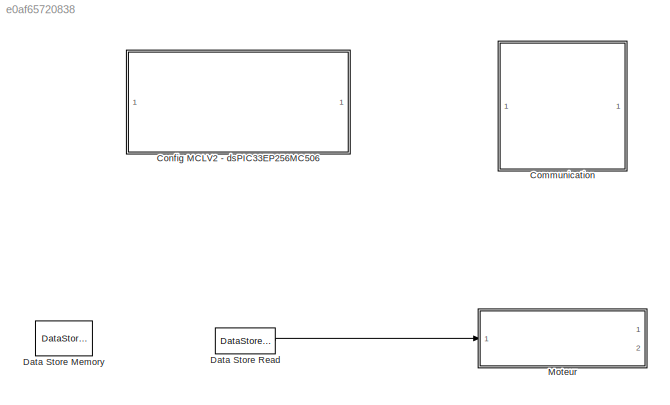
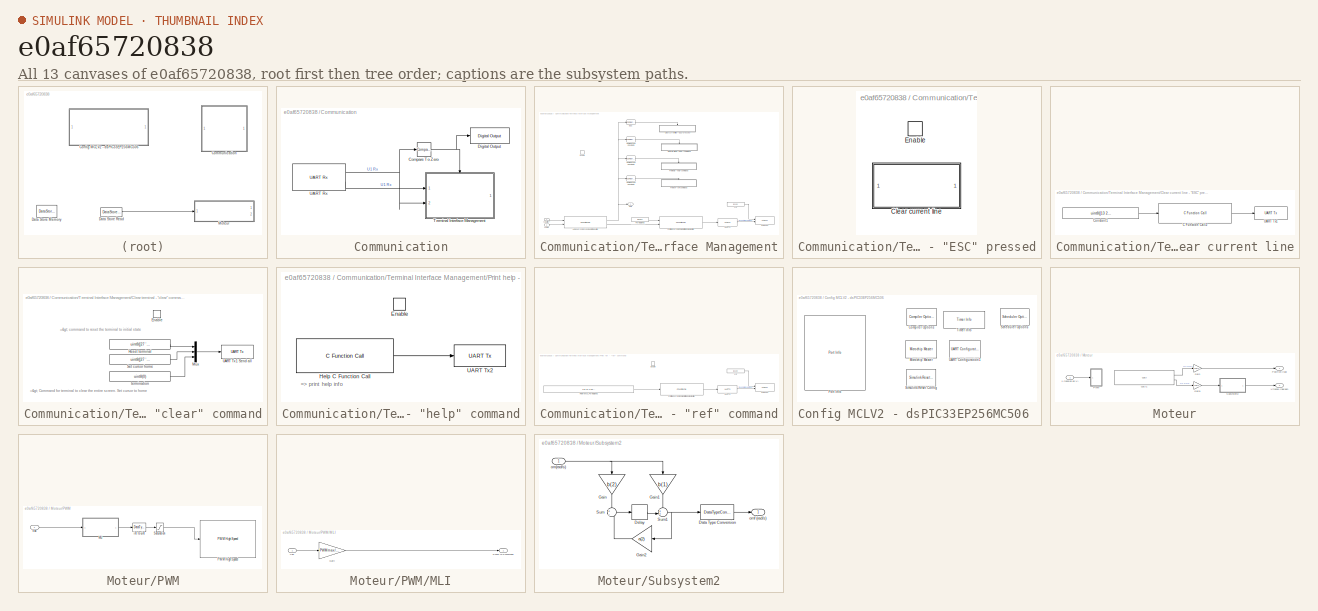
[diagram: thumbnail index - all 13 canvases of the model, root first then tree order]
MODEL slx_e0af65720838
KIND model
CONFIG AbsTol = auto
CONFIG EnableMultiTasking = on
CONFIG FixedStep = Ts
CONFIG MaxStep = auto
CONFIG MinStep = auto
CONFIG RelTol = 1e-3
CONFIG SampleTimeConstraint = Unconstrained
CONFIG Solver = FixedStepDiscrete
CONFIG SolverName = FixedStepDiscrete
CONFIG StartTime = 0.0
CONFIG StopTime = inf
BLOCK [SubSystem] Communication
  Ports = []
  RequestExecContextInheritance = off
  Variant = off
BLOCK [Reference] Communication/Compare To Zero  REF=simulink/Logic and Bit
Operations/Compare
To Zero
  Ports = [1, 1]
  SourceBlock = simulink/Logic and Bit\nOperations/Compare\nTo Zero
  SourceProductBaseCode = SL
  SourceProductName = Simulink
  SourceType = Compare To Zero
BLOCK [Reference] Communication/Digital Output  REF=MCHP_Blockset/Digital IO/Digital Output
  Ports = [1]
  SourceBlock = MCHP_Blockset/Digital IO/Digital Output
  SourceProductName = MPLAB® Device Blocks for Simulink®
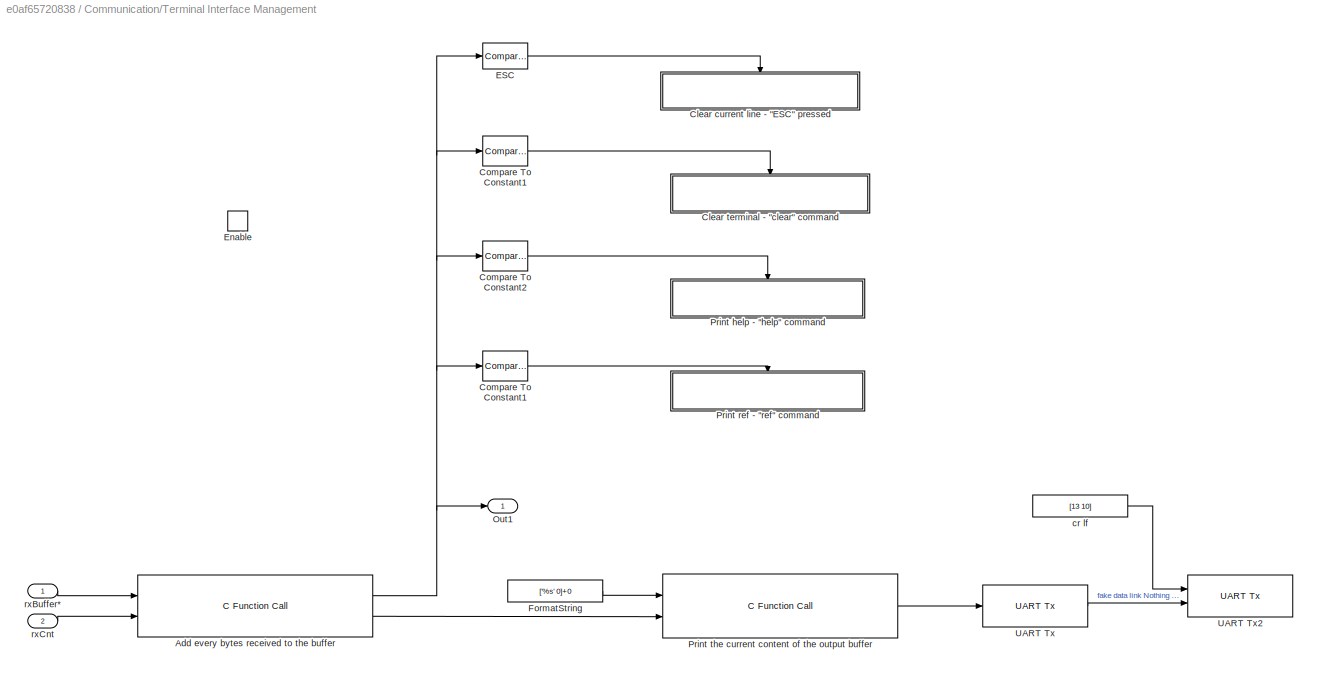
BLOCK [SubSystem] Communication/Terminal Interface Management
  Ports = [2, 1, 1]
  RequestExecContextInheritance = off
  Variant = off
BLOCK [Reference] Communication/Terminal Interface Management/Add every bytes received to the buffer  REF=MCHP_Blockset/User Functions/C Function Call
  Ports = [2, 2]
  Priority = 0
  SourceBlock = MCHP_Blockset/User Functions/C Function Call
  SourceProductName = MPLAB® Device Blocks for Simulink®
  SourceType = C Function Call
  UserDataPersistent = on
BLOCK [SubSystem] Communication/Terminal Interface Management/Clear current line - "ESC" pressed
  Ports = [0, 0, 1]
  Priority = 1
  RequestExecContextInheritance = off
  TreatAsAtomicUnit = on
  Variant = off
BLOCK [SubSystem] Communication/Terminal Interface Management/Clear current line - "ESC" pressed/Clear current line
  Ports = []
  Priority = 0
  RequestExecContextInheritance = off
  TreatAsAtomicUnit = on
  Variant = off
BLOCK [Reference] Communication/Terminal Interface Management/Clear current line - "ESC" pressed/Clear current line/C Function Call2  REF=MCHP_Blockset/User Functions/C Function Call
  Ports = [1, 1]
  SourceBlock = MCHP_Blockset/User Functions/C Function Call
  SourceProductName = MPLAB® Device Blocks for Simulink®
  SourceType = C Function Call
  UserDataPersistent = on
BLOCK [Constant] Communication/Terminal Interface Management/Clear current line - "ESC" pressed/Clear current line/Constant1
  LockScale = on
  OutDataTypeStr = uint8
  Value = uint8([13 27 '[2K' 0])
BLOCK [Reference] Communication/Terminal Interface Management/Clear current line - "ESC" pressed/Clear current line/UART Tx1  REF=MCHP_Blockset/BUS UART/UART Tx
  Ports = [1]
  SourceBlock = MCHP_Blockset/BUS UART/UART Tx
  SourceProductName = MPLAB® Device Blocks for Simulink®
  SourceType = UART Tx Output Driver
BLOCK [EnablePort] Communication/Terminal Interface Management/Clear current line - "ESC" pressed/Enable
  Ports = []
BLOCK [SubSystem] Communication/Terminal Interface Management/Clear terminal - "clear" command
  Ports = [0, 0, 1]
  Priority = 100
  RequestExecContextInheritance = off
  Variant = off
BLOCK [EnablePort] Communication/Terminal Interface Management/Clear terminal - "clear" command/Enable
  Ports = []
BLOCK [Mux] Communication/Terminal Interface Management/Clear terminal - "clear" command/Mux
  DisplayOption = bar
  Inputs = 3
  Ports = [3, 1]
BLOCK [Constant] Communication/Terminal Interface Management/Clear terminal - "clear" command/Reset terminal
  LockScale = on
  Priority = 0
  Value = uint8([27 '[2J'])
BLOCK [Constant] Communication/Terminal Interface Management/Clear terminal - "clear" command/Set cursor home
  LockScale = on
  Priority = 0
  Value = uint8([27 '[H'])
BLOCK [Reference] Communication/Terminal Interface Management/Clear terminal - "clear" command/UART Tx1 Send all  REF=MCHP_Blockset/BUS UART/UART Tx
  Ports = [1]
  SourceBlock = MCHP_Blockset/BUS UART/UART Tx
  SourceProductName = MPLAB® Device Blocks for Simulink®
  SourceType = UART Tx Output Driver
BLOCK [Constant] Communication/Terminal Interface Management/Clear terminal - "clear" command/termination
  LockScale = on
  Priority = 0
  Value = uint8(0)
BLOCK [Reference] Communication/Terminal Interface Management/Compare To Constant1  REF=simulink/Logic and Bit
Operations/Compare
To Constant
  Ports = [1, 1]
  SourceBlock = simulink/Logic and Bit\nOperations/Compare\nTo Constant
  SourceProductBaseCode = SL
  SourceProductName = Simulink
  SourceType = Compare To Constant
BLOCK [Reference] Communication/Terminal Interface Management/Compare To Constant2  REF=simulink/Logic and Bit
Operations/Compare
To Constant
  Ports = [1, 1]
  SourceBlock = simulink/Logic and Bit\nOperations/Compare\nTo Constant
  SourceProductBaseCode = SL
  SourceProductName = Simulink
  SourceType = Compare To Constant
BLOCK [Reference] Communication/Terminal Interface Management/ESC  REF=simulink/Logic and Bit
Operations/Compare
To Constant
  Ports = [1, 1]
  SourceBlock = simulink/Logic and Bit\nOperations/Compare\nTo Constant
  SourceProductBaseCode = SL
  SourceProductName = Simulink
  SourceType = Compare To Constant
BLOCK [EnablePort] Communication/Terminal Interface Management/Enable
  Ports = []
BLOCK [Constant] Communication/Terminal Interface Management/FormatString 
  LockScale = on
  OutDataTypeStr = uint8
  Priority = 15
  Value = ['%s' 0]+0
BLOCK [Outport] Communication/Terminal Interface Management/Out1
  IconDisplay = Port number
BLOCK [SubSystem] Communication/Terminal Interface Management/Print help - "help" command
  Ports = [0, 0, 1]
  Priority = 99
  RequestExecContextInheritance = off
  Variant = off
BLOCK [EnablePort] Communication/Terminal Interface Management/Print help - "help" command/Enable
  Ports = []
BLOCK [Reference] Communication/Terminal Interface Management/Print help - "help" command/Help C Function Call  REF=MCHP_Blockset/User Functions/C Function Call
  Ports = [0, 1]
  Priority = 0
  SourceBlock = MCHP_Blockset/User Functions/C Function Call
  SourceProductName = MPLAB® Device Blocks for Simulink®
  SourceType = C Function Call
  UserDataPersistent = on
BLOCK [Reference] Communication/Terminal Interface Management/Print help - "help" command/UART Tx2  REF=MCHP_Blockset/BUS UART/UART Tx
  Ports = [1]
  SourceBlock = MCHP_Blockset/BUS UART/UART Tx
  SourceProductName = MPLAB® Device Blocks for Simulink®
  SourceType = UART Tx Output Driver
BLOCK [SubSystem] Communication/Terminal Interface Management/Print ref - "ref" command
  Ports = [0, 0, 1]
  Priority = 99
  RequestExecContextInheritance = off
  Variant = off
BLOCK [EnablePort] Communication/Terminal Interface Management/Print ref - "ref" command/Enable
  Ports = []
BLOCK [Reference] Communication/Terminal Interface Management/Print ref - "ref" command/Print the current content of the output buffer  REF=MCHP_Blockset/User Functions/C Function Call
  Ports = [1, 1]
  Priority = 16
  SourceBlock = MCHP_Blockset/User Functions/C Function Call
  SourceProductName = MPLAB® Device Blocks for Simulink®
  SourceType = C Function Call
  UserDataPersistent = on
BLOCK [Constant] Communication/Terminal Interface Management/Print ref - "ref" command/Reference_FormatString
  LockScale = on
  OutDataTypeStr = int8
  SampleTime = -1
  Value = [13 27 '[7m Entrer la valeur de la consigne Press <ESC> to exit' 27 '[27m'  0]+0
BLOCK [Reference] Communication/Terminal Interface Management/Print ref - "ref" command/UART Tx  REF=MCHP_Blockset/BUS UART/UART Tx
  Ports = [1, 1]
  Priority = 17
  SourceBlock = MCHP_Blockset/BUS UART/UART Tx
  SourceProductName = MPLAB® Device Blocks for Simulink®
  SourceType = UART Tx Output Driver
BLOCK [Reference] Communication/Terminal Interface Management/Print ref - "ref" command/UART Tx2  REF=MCHP_Blockset/BUS UART/UART Tx
  Ports = [2]
  Priority = 17
  SourceBlock = MCHP_Blockset/BUS UART/UART Tx
  SourceProductName = MPLAB® Device Blocks for Simulink®
  SourceType = UART Tx Output Driver
BLOCK [Constant] Communication/Terminal Interface Management/Print ref - "ref" command/cr lf
  LockScale = on
  OutDataTypeStr = uint8
  Priority = 15
  Value = [13 10]
BLOCK [Reference] Communication/Terminal Interface Management/Print the current content of the output buffer  REF=MCHP_Blockset/User Functions/C Function Call
  Ports = [2, 1]
  Priority = 16
  SourceBlock = MCHP_Blockset/User Functions/C Function Call
  SourceProductName = MPLAB® Device Blocks for Simulink®
  SourceType = C Function Call
  UserDataPersistent = on
BLOCK [Reference] Communication/Terminal Interface Management/UART Tx  REF=MCHP_Blockset/BUS UART/UART Tx
  Ports = [1, 1]
  Priority = 17
  SourceBlock = MCHP_Blockset/BUS UART/UART Tx
  SourceProductName = MPLAB® Device Blocks for Simulink®
  SourceType = UART Tx Output Driver
BLOCK [Reference] Communication/Terminal Interface Management/UART Tx2  REF=MCHP_Blockset/BUS UART/UART Tx
  Ports = [2]
  Priority = 17
  SourceBlock = MCHP_Blockset/BUS UART/UART Tx
  SourceProductName = MPLAB® Device Blocks for Simulink®
  SourceType = UART Tx Output Driver
BLOCK [Constant] Communication/Terminal Interface Management/cr lf
  LockScale = on
  OutDataTypeStr = uint8
  Priority = 15
  Value = [13 10]
BLOCK [Inport] Communication/Terminal Interface Management/rxBuffer*
  IconDisplay = Port number
BLOCK [Inport] Communication/Terminal Interface Management/rxCnt
  IconDisplay = Port number
  Port = 2
BLOCK [Reference] Communication/UART Rx  REF=MCHP_Blockset/BUS UART/UART Rx
  Ports = [0, 2]
  SourceBlock = MCHP_Blockset/BUS UART/UART Rx
  SourceProductName = MPLAB® Device Blocks for Simulink®
  SourceType = UART Rx Input Driver
BLOCK [SubSystem] Config MCLV2 - dsPIC33EP256MC506 
  Ports = []
  RequestExecContextInheritance = off
  Variant = off
BLOCK [Reference] Config MCLV2 - dsPIC33EP256MC506 /Compiler Options  REF=MCHP_Blockset/System Configuration/Compiler Options
  Ports = []
  Priority = 1
  SourceBlock = MCHP_Blockset/System Configuration/Compiler Options
  SourceProductName = MPLAB® Device Blocks for Simulink®
BLOCK [Reference] Config MCLV2 - dsPIC33EP256MC506 /Microchip Master  REF=MCHP_Blockset/System Configuration/Microchip Master
  Ports = []
  Priority = 1
  SourceBlock = MCHP_Blockset/System Configuration/Microchip Master
  SourceProductName = MPLAB® Device Blocks for Simulink®
BLOCK [Reference] Config MCLV2 - dsPIC33EP256MC506 /Port Info  REF=MCHP_Blockset/System Info/Port Info
  Ports = []
  SourceBlock = MCHP_Blockset/System Info/Port Info
  SourceProductName = MPLAB® Device Blocks for Simulink®
BLOCK [Reference] Config MCLV2 - dsPIC33EP256MC506 /Scheduler Options  REF=MCHP_Blockset/System Configuration/Scheduler Options
  Ports = []
  SourceBlock = MCHP_Blockset/System Configuration/Scheduler Options
  SourceProductName = MPLAB® Device Blocks for Simulink®
  SourceType = Scheduler Options
BLOCK [Reference] Config MCLV2 - dsPIC33EP256MC506 /Simulink Reset Config  REF=MCHP_Blockset/System Configuration/Simulink Reset
Config
  Ports = []
  SourceBlock = MCHP_Blockset/System Configuration/Simulink Reset\nConfig
  SourceProductName = MPLAB® Device Blocks for Simulink®
BLOCK [Reference] Config MCLV2 - dsPIC33EP256MC506 /Timer Info  REF=MCHP_Blockset/System Info/Timer Info
  Ports = []
  SourceBlock = MCHP_Blockset/System Info/Timer Info
  SourceProductName = MPLAB® Device Blocks for Simulink®
BLOCK [Reference] Config MCLV2 - dsPIC33EP256MC506 /UART Configuration1  REF=MCHP_Blockset/BUS UART/UART Configuration
  Ports = []
  SourceBlock = MCHP_Blockset/BUS UART/UART Configuration
  SourceProductName = MPLAB® Device Blocks for Simulink®
  SourceType = Configuration for UART peripheral
BLOCK [DataStoreMemory] Data Store Memory
  DataStoreName = V_Motor
  OutDataTypeStr = uint16
  ReadBeforeWriteMsg = warning
  ShowAdditionalParam = off
  WriteAfterReadMsg = warning
  WriteAfterWriteMsg = warning
BLOCK [DataStoreRead] Data Store Read
  DataStoreName = V_Motor
  Ports = [0, 1]
  SampleTime = .01
BLOCK [SubSystem] Moteur
  Ports = [1, 2]
  RequestExecContextInheritance = off
  Variant = off
BLOCK [Gain] Moteur/Gain
  Gain = 2*pi/Lignes
  OutDataTypeStr = fixdt(1,16,5)
  ParamDataTypeStr = Inherit: Inherit via internal rule
  SaturateOnIntegerOverflow = off
BLOCK [Gain] Moteur/Gain1
  Gain = 2*pi/Lignes/Ts
  LockScale = on
  OutDataTypeStr = fixdt(1,16,5)
  ParamDataTypeStr = Inherit: Inherit via internal rule
  SaturateOnIntegerOverflow = off
BLOCK [SubSystem] Moteur/PWM
  Ports = [1]
  RequestExecContextInheritance = off
  Variant = off
BLOCK [SubSystem] Moteur/PWM/MLI
  Ports = [1, 1]
  RequestExecContextInheritance = off
  Variant = off
BLOCK [Gain] Moteur/PWM/MLI/Gain
  Gain = PWMmax/Vdc
  OutDataTypeStr = uint16
  ParamDataTypeStr = Inherit: Inherit via internal rule
  SaturateOnIntegerOverflow = off
BLOCK [Outport] Moteur/PWM/MLI/PWM [0 PWMmax]
  IconDisplay = Port number
BLOCK [Inport] Moteur/PWM/MLI/Vdc
  IconDisplay = Port number
BLOCK [Reference] Moteur/PWM/PWM High Speed  REF=MCHP_Blockset/PWM IO/PWM High Speed
  Ports = [1]
  SourceBlock = MCHP_Blockset/PWM IO/PWM High Speed
  SourceProductName = MPLAB® Device Blocks for Simulink®
  UserDataPersistent = on
BLOCK [Saturate] Moteur/PWM/Saturation
  InputPortMap = u0
  LowerLimit = round( (Tm/TPWM) *PWMmax )
  Ports = [1, 1]
  UpperLimit = PWMmax
BLOCK [Inport] Moteur/PWM/Vdc
  IconDisplay = Port number
BLOCK [DataTypeConversion] Moteur/PWM/int to uint
  ConvertRealWorld = Stored Integer (SI)
  OutDataTypeStr = uint16
  RndMeth = Floor
  SaturateOnIntegerOverflow = off
BLOCK [Outport] Moteur/Position (rad)
  IconDisplay = Port number
BLOCK [Reference] Moteur/QEI1  REF=MCHP_Blockset/QEI/QEI
  Ports = [0, 2]
  SourceBlock = MCHP_Blockset/QEI/QEI
  SourceProductName = MPLAB® Device Blocks for Simulink®
  SourceType = Output Driver for Quadrature Encoder Interface (QEI) peripheral
  UserDataPersistent = on
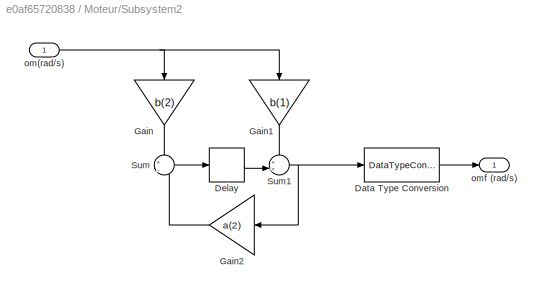
BLOCK [SubSystem] Moteur/Subsystem2
  Ports = [1, 1]
  RequestExecContextInheritance = off
  Variant = off
BLOCK [DataTypeConversion] Moteur/Subsystem2/Data Type Conversion
  OutDataTypeStr = fixdt(1,16,5)
  OutMax = [500]
  OutMin = [-500]
  RndMeth = Floor
  SaturateOnIntegerOverflow = off
BLOCK [Delay] Moteur/Subsystem2/Delay
  DelayLength = 1
  InitialCondition = 0
  InputPortMap = u0
  Ports = [1, 1]
  SampleTime = Ts
BLOCK [Gain] Moteur/Subsystem2/Gain
  Gain = b(2)
  OutDataTypeStr = fixdt(1,16,12)
  OutMax = [b(2)*500]
  OutMin = [b(2)*-500]
  ParamDataTypeStr = fixdt(1,16,21)
  SaturateOnIntegerOverflow = off
BLOCK [Gain] Moteur/Subsystem2/Gain1
  Gain = b(1)
  OutDataTypeStr = fixdt(1,16,12)
  OutMax = [b(1)*500]
  OutMin = [b(1)*-500]
  ParamDataTypeStr = fixdt(1,16,21)
  SaturateOnIntegerOverflow = off
BLOCK [Gain] Moteur/Subsystem2/Gain2
  Gain = a(2)
  OutDataTypeStr = fixdt(1,16,6)
  OutMax = [-a(2)*500]
  OutMin = [-a(2)*-500]
  ParamDataTypeStr = fixdt(1,16,15)
  SaturateOnIntegerOverflow = off
BLOCK [Sum] Moteur/Subsystem2/Sum
  IconShape = round
  InputSameDT = off
  Inputs = +|-
  OutDataTypeStr = Inherit: Inherit via internal rule
  Ports = [2, 1]
  SaturateOnIntegerOverflow = off
BLOCK [Sum] Moteur/Subsystem2/Sum1
  IconShape = round
  InputSameDT = off
  Inputs = ++|
  OutDataTypeStr = Inherit: Inherit via internal rule
  Ports = [2, 1]
  SaturateOnIntegerOverflow = off
BLOCK [Inport] Moteur/Subsystem2/om(rad//s)
  IconDisplay = Port number
BLOCK [Outport] Moteur/Subsystem2/omf (rad//s)
  IconDisplay = Port number
BLOCK [Outport] Moteur/Vitesse (rad//sec)
  IconDisplay = Port number
  Port = 2
BLOCK [Inport] Moteur/v (tension en V)
  IconDisplay = Port number
ANNOTATION Communication/Terminal Interface Management/Clear terminal - "clear" command: => Command for terminal to clear the entire screen. Set cursor to home
ANNOTATION Communication/Terminal Interface Management/Clear terminal - "clear" command: => command to r eset the terminal to initial state
ANNOTATION Communication/Terminal Interface Management/Print help - "help" command: => print help info
NET Communication/Compare To Zero:1 -> Communication/Digital Output:1, Communication/Terminal Interface Management:enable
NET Communication/Terminal Interface Management/Add every bytes received to the buffer:1 -> Communication/Terminal Interface Management/Compare To Constant1:1, Communication/Terminal Interface Management/Compare To Constant2:1, Communication/Terminal Interface Management/ESC:1, Communication/Terminal Interface Management/Out1:1
LINE Communication/Terminal Interface Management/Add every bytes received to the buffer:2 -> Communication/Terminal Interface Management/Print the current content of the output buffer:2
LINE Communication/Terminal Interface Management/Clear current line - "ESC" pressed/Clear current line/C Function Call2:1 -> Communication/Terminal Interface Management/Clear current line - "ESC" pressed/Clear current line/UART Tx1:1
LINE Communication/Terminal Interface Management/Clear current line - "ESC" pressed/Clear current line/Constant1:1 -> Communication/Terminal Interface Management/Clear current line - "ESC" pressed/Clear current line/C Function Call2:1
LINE Communication/Terminal Interface Management/Clear terminal - "clear" command/Mux:1 -> Communication/Terminal Interface Management/Clear terminal - "clear" command/UART Tx1 Send all:1
LINE Communication/Terminal Interface Management/Clear terminal - "clear" command/Reset terminal:1 -> Communication/Terminal Interface Management/Clear terminal - "clear" command/Mux:1
LINE Communication/Terminal Interface Management/Clear terminal - "clear" command/Set cursor home:1 -> Communication/Terminal Interface Management/Clear terminal - "clear" command/Mux:2
LINE Communication/Terminal Interface Management/Clear terminal - "clear" command/termination:1 -> Communication/Terminal Interface Management/Clear terminal - "clear" command/Mux:3
NET Communication/Terminal Interface Management/Compare To Constant1:1 -> Communication/Terminal Interface Management/Clear terminal - "clear" command:enable, Communication/Terminal Interface Management/Print ref - "ref" command:enable
LINE Communication/Terminal Interface Management/Compare To Constant2:1 -> Communication/Terminal Interface Management/Print help - "help" command:enable
LINE Communication/Terminal Interface Management/ESC:1 -> Communication/Terminal Interface Management/Clear current line - "ESC" pressed:enable
LINE Communication/Terminal Interface Management/FormatString :1 -> Communication/Terminal Interface Management/Print the current content of the output buffer:1
LINE Communication/Terminal Interface Management/Print help - "help" command/Help C Function Call:1 -> Communication/Terminal Interface Management/Print help - "help" command/UART Tx2:1
LINE Communication/Terminal Interface Management/Print ref - "ref" command/Print the current content of the output buffer:1 -> Communication/Terminal Interface Management/Print ref - "ref" command/UART Tx:1
LINE Communication/Terminal Interface Management/Print ref - "ref" command/Reference_FormatString:1 -> Communication/Terminal Interface Management/Print ref - "ref" command/Print the current content of the output buffer:1
LINE Communication/Terminal Interface Management/Print ref - "ref" command/UART Tx:1 -> Communication/Terminal Interface Management/Print ref - "ref" command/UART Tx2:2
LINE Communication/Terminal Interface Management/Print ref - "ref" command/cr lf:1 -> Communication/Terminal Interface Management/Print ref - "ref" command/UART Tx2:1
LINE Communication/Terminal Interface Management/Print the current content of the output buffer:1 -> Communication/Terminal Interface Management/UART Tx:1
LINE Communication/Terminal Interface Management/UART Tx:1 -> Communication/Terminal Interface Management/UART Tx2:2
LINE Communication/Terminal Interface Management/cr lf:1 -> Communication/Terminal Interface Management/UART Tx2:1
LINE Communication/Terminal Interface Management/rxBuffer*:1 -> Communication/Terminal Interface Management/Add every bytes received to the buffer:1
LINE Communication/Terminal Interface Management/rxCnt:1 -> Communication/Terminal Interface Management/Add every bytes received to the buffer:2
NET Communication/UART Rx:1 -> Communication/Compare To Zero:1, Communication/Terminal Interface Management:2
LINE Communication/UART Rx:2 -> Communication/Terminal Interface Management:1
LINE Data Store Read:1 -> Moteur:1
LINE Moteur/Gain1:1 -> Moteur/Subsystem2:1
LINE Moteur/Gain:1 -> Moteur/Position (rad):1
LINE Moteur/PWM/MLI/Gain:1 -> Moteur/PWM/MLI/PWM [0 PWMmax]:1
LINE Moteur/PWM/MLI/Vdc:1 -> Moteur/PWM/MLI/Gain:1
LINE Moteur/PWM/MLI:1 -> Moteur/PWM/int to uint:1
LINE Moteur/PWM/Saturation:1 -> Moteur/PWM/PWM High Speed:1
LINE Moteur/PWM/Vdc:1 -> Moteur/PWM/MLI:1
LINE Moteur/PWM/int to uint:1 -> Moteur/PWM/Saturation:1
LINE Moteur/QEI1:1 -> Moteur/Gain:1
LINE Moteur/QEI1:2 -> Moteur/Gain1:1
LINE Moteur/Subsystem2/Data Type Conversion:1 -> Moteur/Subsystem2/omf (rad//s):1
LINE Moteur/Subsystem2/Delay:1 -> Moteur/Subsystem2/Sum1:2
LINE Moteur/Subsystem2/Gain1:1 -> Moteur/Subsystem2/Sum1:1
LINE Moteur/Subsystem2/Gain2:1 -> Moteur/Subsystem2/Sum:2
LINE Moteur/Subsystem2/Gain:1 -> Moteur/Subsystem2/Sum:1
NET Moteur/Subsystem2/Sum1:1 -> Moteur/Subsystem2/Data Type Conversion:1, Moteur/Subsystem2/Gain2:1
LINE Moteur/Subsystem2/Sum:1 -> Moteur/Subsystem2/Delay:1
NET Moteur/Subsystem2/om(rad//s):1 -> Moteur/Subsystem2/Gain1:1, Moteur/Subsystem2/Gain:1
LINE Moteur/Subsystem2:1 -> Moteur/Vitesse (rad//sec):1
LINE Moteur/v (tension en V):1 -> Moteur/PWM:1
note: NET lines group one-source signal fan-out (src -> all destinations, sorted); 1:1 wires keep LINE
